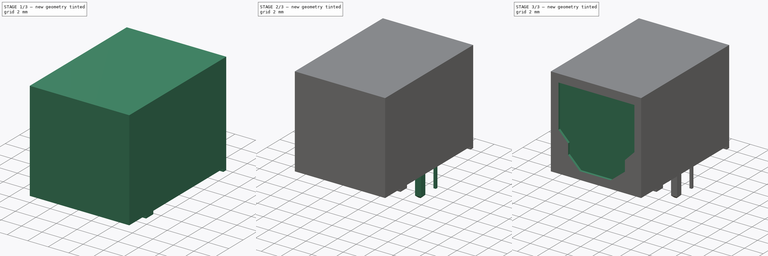
[diagram: build sequence overview — one tinted view per stage of 3, left to right]
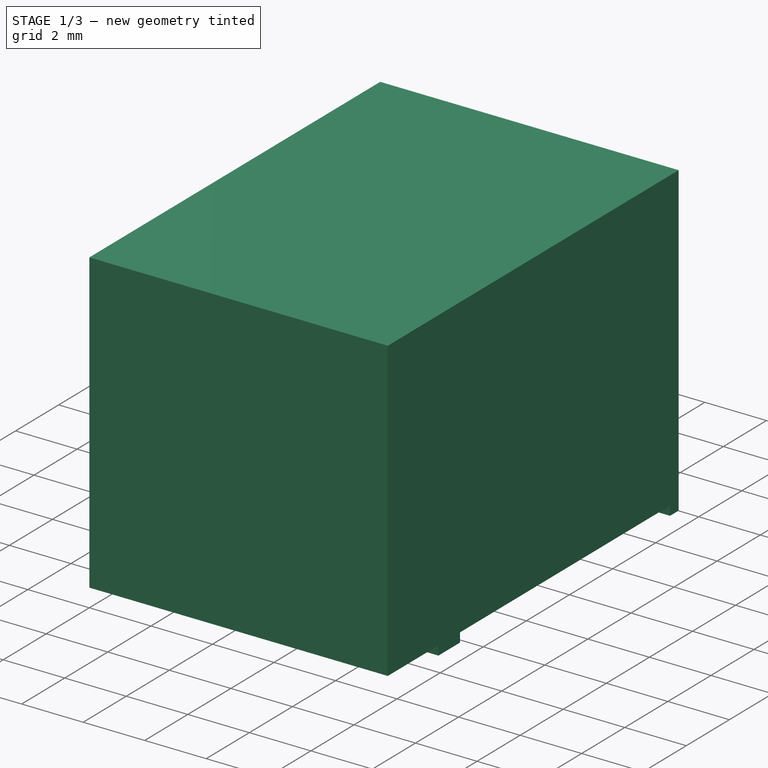
[diagram: stage 1 of 3 — iso view after this stage's code; geometry added in this stage tinted green]
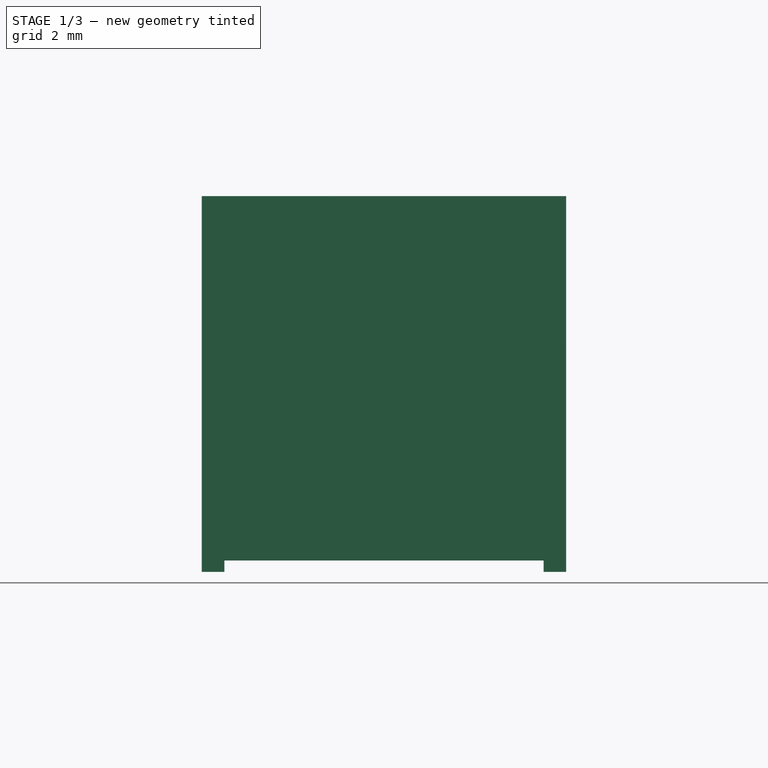
[diagram: stage 1 of 3 — front view after this stage's code; geometry added in this stage tinted green]
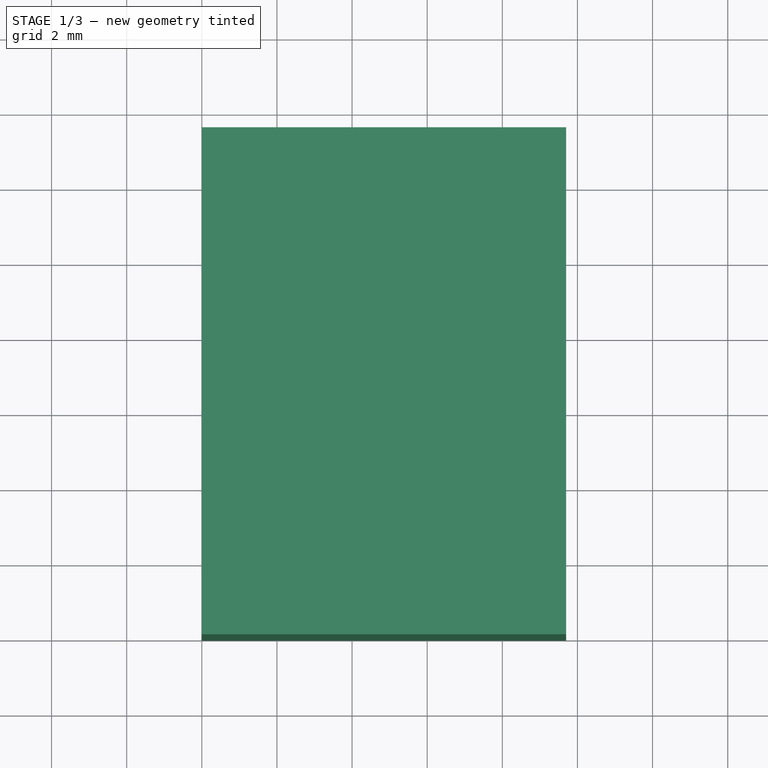
[diagram: stage 1 of 3 — top view after this stage's code; geometry added in this stage tinted green]
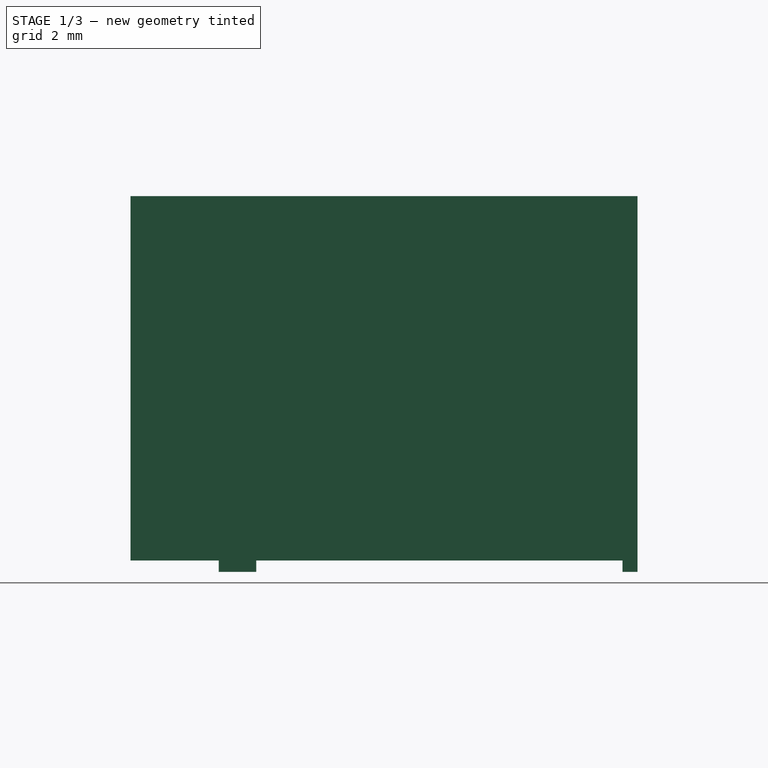
[diagram: stage 1 of 3 — right view after this stage's code; geometry added in this stage tinted green]
FCSTD DOCUMENT  (FreeCAD 1.0R39319 (Git))
Label: PLx237
License: All rights reserved
LicenseURL: https://en.wikipedia.org/wiki/All_rights_reserved
objects: Sketcher::SketchObject×7, PartDesign::Pad×4, PartDesign::Pocket×2, PartDesign::Plane×2, PartDesign::Chamfer×1, PartDesign::Body×1, Part::Feature×1
note: 39 computed .brp shape members not serialized (recipe doc carries the construction recipe); baked Part::Feature solids carry a one-line shape summary decoded from their .brp

FEATURE [Sketcher::SketchObject] Sketch
  ArcFitTolerance = 1e-06
  AttachmentSupport = -> [YZ_Plane]
  FullyConstrained = false
  MakeInternals = false
  MapMode = 5
  Placement = pos=(0,0,0) rot=(0.57735,0.57735,0.57735;2.0944rad)
  sketch-geometry (16):
    g0: LineSegment StartX=0 StartY=0 StartZ=0 EndX=0 EndY=-9.7 EndZ=0
    g1: LineSegment StartX=0 StartY=-9.7 StartZ=0 EndX=2.35 EndY=-9.7 EndZ=0
    g2: LineSegment StartX=13.5 StartY=-9.7 StartZ=0 EndX=13.5 EndY=0 EndZ=0
    g3: LineSegment StartX=13.5 StartY=0 StartZ=0 EndX=0 EndY=0 EndZ=0
    g4: GeomPoint X=2.35 Y=-9.7 Z=0
    g5: LineSegment [constr] StartX=0 StartY=-10 StartZ=0 EndX=13.5 EndY=-10 EndZ=0
    g6: GeomPoint X=2.35 Y=-10 Z=0
    g7: LineSegment StartX=2.35 StartY=-9.7 StartZ=0 EndX=2.35 EndY=-10 EndZ=0
    g8: GeomPoint X=3.35 Y=-10 Z=0
    g9: LineSegment StartX=2.35 StartY=-10 StartZ=0 EndX=3.35 EndY=-10 EndZ=0
    g10: LineSegment StartX=3.35 StartY=-10 StartZ=0 EndX=3.35 EndY=-9.7 EndZ=0
    g11: LineSegment StartX=3.35 StartY=-9.7 StartZ=0 EndX=13.1 EndY=-9.7 EndZ=0
    g12: GeomPoint X=13.1 Y=-9.7 Z=0
    g13: LineSegment StartX=13.1 StartY=-9.7 StartZ=0 EndX=13.1 EndY=-10 EndZ=0
    g14: LineSegment StartX=13.1 StartY=-10 StartZ=0 EndX=13.5 EndY=-10 EndZ=0
    g15: LineSegment StartX=13.5 StartY=-10 StartZ=0 EndX=13.5 EndY=-9.7 EndZ=0
  constraints (40):
    c: Coincident(g0,g1)
    c: Coincident(g2,g3)
    c: Coincident(g3,g0)
    c: Vertical(g0)
    c: Vertical(g2)
    c: Horizontal(g1)
    c: Horizontal(g3)
    c: DistanceX(g3,g3) = 13.5
    c: DistanceY(g0,g0) = 9.7
    c: Coincident(g0,g-1)
    c: PointOnObject(g4,g1)
    c: DistanceX(g0,g4) = 2.35
    c: PointOnObject(g5,g-2)
    c: Horizontal(g5)
    c: PointOnObject(g6,g5)
    c: DistanceY(g5,g0) = 10
    c: Coincident(g7,g4)
    c: Coincident(g7,g6)
    c: Vertical(g7)
    c: PointOnObject(g8,g5)
    c: DistanceX(g6,g8) = 1
    c: Coincident(g9,g6)
    c: Coincident(g9,g8)
    c: Coincident(g10,g8)
    c: PointOnObject(g10,g11)
    c: Vertical(g10)
    c: PointOnObject(g1,g7)
    c: PointOnObject(g11,g10)
    c: Horizontal(g1,g10)
    c: Horizontal(g2,g10)
    c: PointOnObject(g12,g11)
    c: DistanceX(g12,g2) = 0.4
    c: Coincident(g13,g12)
    c: PointOnObject(g13,g5)
    c: Vertical(g13)
    c: Coincident(g14,g13)
    c: Coincident(g14,g5)
    c: Coincident(g15,g5)
    c: Coincident(g15,g2)
    c: PointOnObject(g11,g13)
FEATURE [PartDesign::Pad] Pad
  Direction = (1,0,0)
  Length = 9.7
  Length2 = 10
  Placement = pos=(0,0,0) rot=(1,1,1;2.0944rad)
  Profile = -> Sketch
  ReferenceAxis = -> Sketch [N_Axis]
  Refine = true
  Suppressed = false
  Type = 0
FEATURE [Sketcher::SketchObject] Sketch001
  ArcFitTolerance = 1e-06
  AttachmentSupport = -> [Pad]
  ExternalGeometry = -> [Pad]
  FullyConstrained = true
  MakeInternals = false
  MapMode = 5
  Placement = pos=(0,0,0) rot=(0.57735,0.57735,-0.57735;2.0944rad)
  sketch-geometry (6):
    g0: LineSegment StartX=9.7 StartY=9.1 StartZ=0 EndX=9.7 EndY=0.6 EndZ=0
    g1: LineSegment StartX=9.7 StartY=0.6 StartZ=0 EndX=10 EndY=0.6 EndZ=0
    g2: LineSegment StartX=10 StartY=0.6 StartZ=0 EndX=10 EndY=9.1 EndZ=0
    g3: LineSegment StartX=10 StartY=9.1 StartZ=0 EndX=9.7 EndY=9.1 EndZ=0
    g4: GeomPoint [constr] X=9.7 Y=4.85 Z=0
    g5: GeomPoint [constr] X=9.7 Y=4.85 Z=0
  constraints (13):
    c: Coincident(g0,g1)
    c: Coincident(g1,g2)
    c: Coincident(g2,g3)
    c: Coincident(g3,g0)
    c: Vertical(g0)
    c: Vertical(g2)
    c: Horizontal(g1)
    c: Horizontal(g3)
    c: PointOnObject(g1,g-6)
    c: DistanceY(g0,g0) = 8.5
    c: Symmetric(g0,g0,g4)
    c: Symmetric(g-3,g-3,g5)
    c: Coincident(g4,g5)
FEATURE [PartDesign::Pocket] Pocket
  BaseFeature = -> Pad
  Direction = (0,1,0)
  Length = 14
  Length2 = 5
  Placement = pos=(0,0,0) rot=(1,1,1;2.0944rad)
  Profile = -> Sketch001
  ReferenceAxis = -> Sketch001 [N_Axis]
  Refine = true
  Suppressed = false
  Type = 0
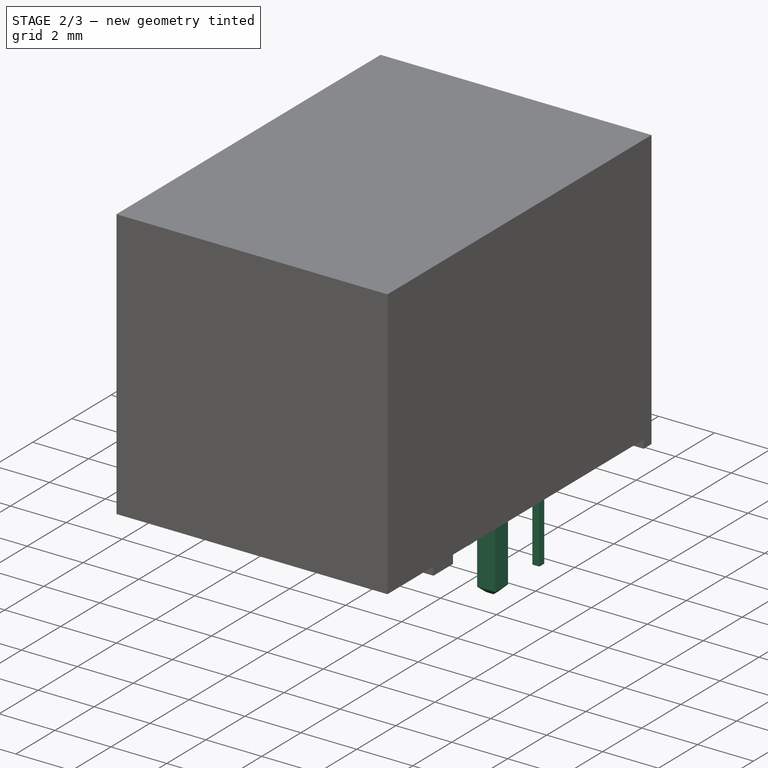
[diagram: stage 2 of 3 — iso view after this stage's code; geometry added in this stage tinted green]
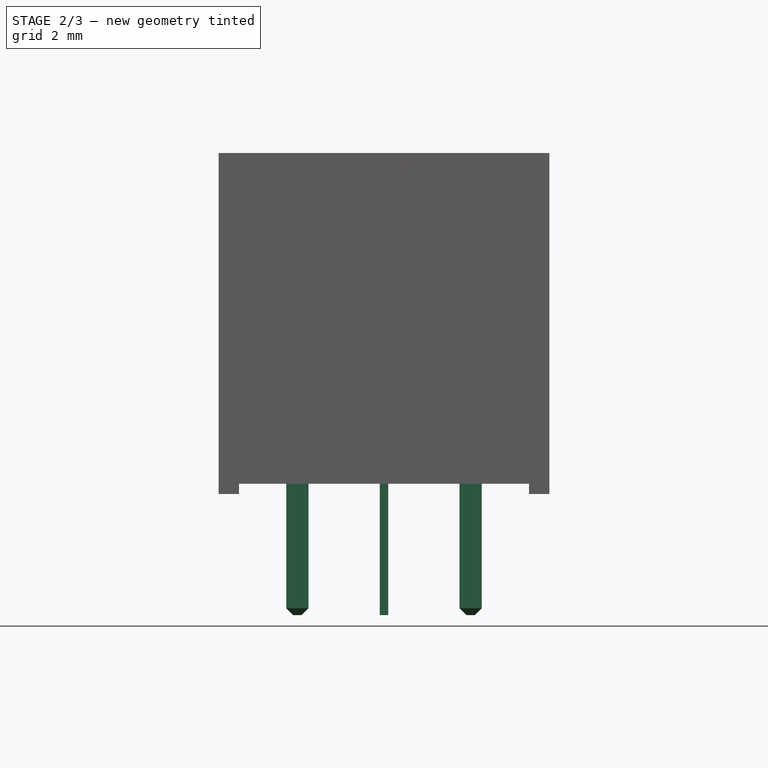
[diagram: stage 2 of 3 — front view after this stage's code; geometry added in this stage tinted green]
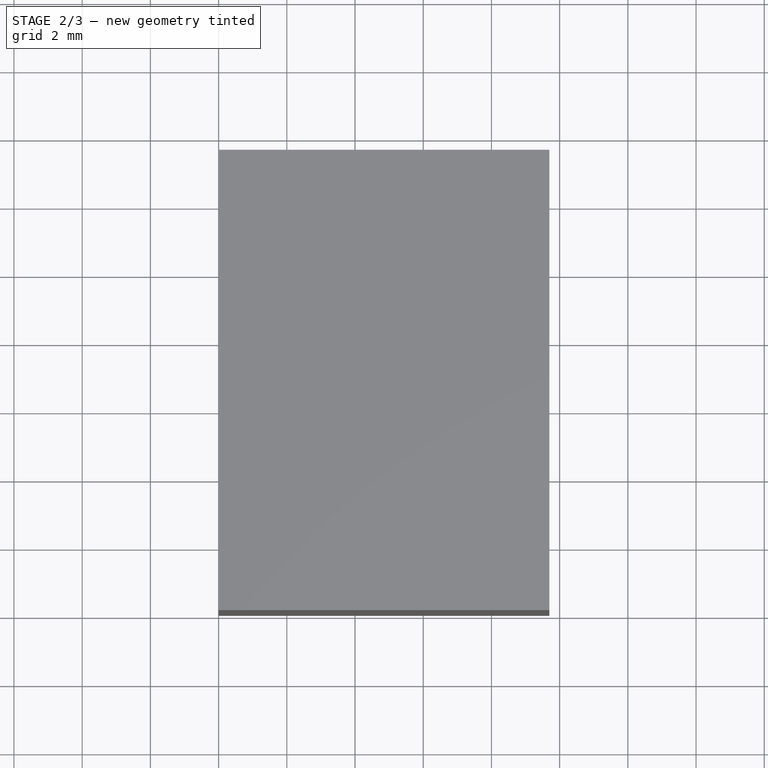
[diagram: stage 2 of 3 — top view after this stage's code; geometry added in this stage tinted green]
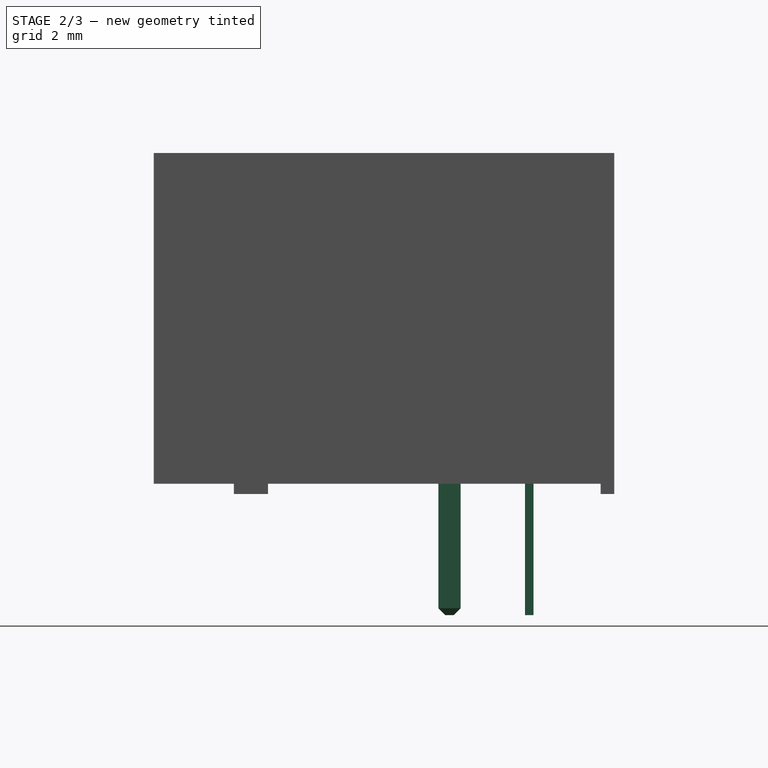
[diagram: stage 2 of 3 — right view after this stage's code; geometry added in this stage tinted green]
FEATURE [Sketcher::SketchObject] Sketch002
  ArcFitTolerance = 1e-06
  AttachmentSupport = -> [Pocket]
  ExternalGeometry = -> [Pocket]
  FullyConstrained = true
  MakeInternals = false
  MapMode = 5
  Placement = pos=(9.7,-4.3e-15,2.2e-15) rot=(0.57735,0.57735,0.57735;2.0944rad)
  sketch-geometry (2):
    g0: GeomPoint X=8.67 Y=-5.8e-15 Z=0
    g1: GeomPoint X=11.01 Y=-7.3e-15 Z=0
  constraints (4):
    c: PointOnObject(g0,g-3)
    c: DistanceX(g-1,g0) = 8.67
    c: PointOnObject(g1,g-3)
    c: DistanceX(g-1,g1) = 11.01
FEATURE [PartDesign::Plane] DatumPlane
  AttachmentOffset = pos=(0,0,5) rot=(0,0,1;0rad)
  AttachmentSupport = -> [Sketch002]
  Length = 60
  MapMode = 1
  Placement = pos=(9.7,8.67,5) rot=(0.57735,0.57735,-0.57735;2.0944rad)
  ResizeMode = 0
  Width = 60
FEATURE [PartDesign::Plane] DatumPlane001
  AttachmentSupport = -> [Sketch002]
  Length = 60
  MapMode = 1
  Placement = pos=(9.7,11.01,-5.1e-15) rot=(0.57735,0.57735,-0.57735;2.0944rad)
  ResizeMode = 0
  Width = 60
FEATURE [Sketcher::SketchObject] Sketch003
  ArcFitTolerance = 1e-06
  AttachmentSupport = -> [DatumPlane]
  ExternalGeometry = -> [Pocket]
  FullyConstrained = true
  MakeInternals = false
  MapMode = 5
  Placement = pos=(9.7,8.67,5) rot=(0.57735,0.57735,-0.57735;2.0944rad)
  sketch-geometry (20):
    g0: LineSegment [constr] StartX=18.55 StartY=-9.7 StartZ=0 EndX=18.55 EndY=0 EndZ=0
    g1: LineSegment [constr] StartX=14.7 StartY=-9.7 StartZ=0 EndX=18.55 EndY=-9.7 EndZ=0
    g2: LineSegment [constr] StartX=14.7 StartY=-4.525 StartZ=0 EndX=14.7 EndY=-5.175 EndZ=0
    g3: LineSegment [constr] StartX=14.7 StartY=-5.175 StartZ=0 EndX=18.55 EndY=-5.175 EndZ=0
    g4: LineSegment [constr] StartX=18.55 StartY=-5.175 StartZ=0 EndX=18.55 EndY=-4.525 EndZ=0
    g5: LineSegment [constr] StartX=18.55 StartY=-4.525 StartZ=0 EndX=14.7 EndY=-4.525 EndZ=0
    g6: GeomPoint [constr] X=14.7 Y=-4.85 Z=0
    g7: GeomPoint [constr] X=18.55 Y=-4.85 Z=0
    g8: LineSegment StartX=14.7 StartY=-1.985 StartZ=0 EndX=14.7 EndY=-2.635 EndZ=0
    g9: LineSegment StartX=14.7 StartY=-2.635 StartZ=0 EndX=18.55 EndY=-2.635 EndZ=0
    g10: LineSegment StartX=18.55 StartY=-2.635 StartZ=0 EndX=18.55 EndY=-1.985 EndZ=0
    g11: LineSegment StartX=18.55 StartY=-1.985 StartZ=0 EndX=14.7 EndY=-1.985 EndZ=0
    g12: LineSegment StartX=14.7 StartY=-7.065 StartZ=0 EndX=14.7 EndY=-7.715 EndZ=0
    g13: LineSegment StartX=14.7 StartY=-7.715 StartZ=0 EndX=18.55 EndY=-7.715 EndZ=0
    g14: LineSegment StartX=18.55 StartY=-7.715 StartZ=0 EndX=18.55 EndY=-7.065 EndZ=0
    g15: LineSegment StartX=18.55 StartY=-7.065 StartZ=0 EndX=14.7 EndY=-7.065 EndZ=0
    g16: GeomPoint [constr] X=18.55 Y=-2.31 Z=0
    g17: GeomPoint [constr] X=18.55 Y=-7.39 Z=0
    g18: LineSegment [constr] StartX=18.55 StartY=-2.31 StartZ=0 EndX=18.55 EndY=-4.85 EndZ=0
    g19: LineSegment [constr] StartX=18.55 StartY=-7.39 StartZ=0 EndX=18.55 EndY=-4.85 EndZ=0
  constraints (50):
    c: PointOnObject(g0,g-1)
    c: Vertical(g0)
    c: Coincident(g1,g-3)
    c: Horizontal(g1)
    c: Coincident(g1,g0)
    c: DistanceX(g1,g1) = 3.85
    c: Coincident(g2,g3)
    c: Coincident(g3,g4)
    c: Coincident(g4,g5)
    c: Coincident(g5,g2)
    c: Vertical(g2)
    c: Vertical(g4)
    c: Horizontal(g3)
    c: Horizontal(g5)
    c: PointOnObject(g2,g-3)
    c: PointOnObject(g3,g0)
    c: DistanceY(g4,g4) = 0.65
    c: Symmetric(g-3,g-3,g6)
    c: Symmetric(g4,g4,g7)
    c: Horizontal(g7,g6)
    c: Coincident(g8,g9)
    c: Coincident(g9,g10)
    c: Coincident(g10,g11)
    c: Coincident(g11,g8)
    c: Vertical(g8)
    c: Vertical(g10)
    c: Horizontal(g9)
    c: Horizontal(g11)
    c: PointOnObject(g8,g-3)
    c: PointOnObject(g9,g0)
    c: DistanceY(g10,g10) = 0.65
    c: Coincident(g12,g13)
    c: Coincident(g13,g14)
    c: Coincident(g14,g15)
    c: Coincident(g15,g12)
    c: Vertical(g12)
    c: Vertical(g14)
    c: Horizontal(g13)
    c: Horizontal(g15)
    c: PointOnObject(g12,g-3)
    c: PointOnObject(g13,g0)
    c: DistanceY(g14,g14) = 0.65
    c: Symmetric(g10,g10,g16)
    c: Symmetric(g14,g14,g17)
    c: DistanceY(g7,g16) = 2.54
    c: Coincident(g18,g16)
    c: Coincident(g18,g7)
    c: Coincident(g19,g17)
    c: Coincident(g19,g7)
    c: Equal(g18,g19)
FEATURE [PartDesign::Pad] Pad001
  BaseFeature = -> Pocket
  Direction = (0,-1,0)
  Length = 0.65
  Length2 = 10
  Midplane = true
  Placement = pos=(0,0,0) rot=(1,1,1;2.0944rad)
  Profile = -> Sketch003
  ReferenceAxis = -> Sketch003 [N_Axis]
  Refine = true
  Suppressed = false
  Type = 0
FEATURE [Sketcher::SketchObject] Sketch004
  ArcFitTolerance = 1e-06
  AttachmentSupport = -> [DatumPlane001]
  ExternalGeometry = -> [Pad001]
  FullyConstrained = true
  MakeInternals = false
  MapMode = 5
  Placement = pos=(9.7,11.01,-5.1e-15) rot=(0.57735,0.57735,-0.57735;2.0944rad)
  sketch-geometry (18):
    g0: LineSegment [constr] StartX=13.55 StartY=0 StartZ=0 EndX=13.55 EndY=-9.7 EndZ=0
    g1: LineSegment [constr] StartX=9.7 StartY=-9.7 StartZ=0 EndX=13.55 EndY=-9.7 EndZ=0
    g2: LineSegment StartX=9.7 StartY=-4.725 StartZ=0 EndX=9.7 EndY=-4.975 EndZ=0
    g3: LineSegment StartX=9.7 StartY=-4.975 StartZ=0 EndX=13.55 EndY=-4.975 EndZ=0
    g4: LineSegment StartX=13.55 StartY=-4.975 StartZ=0 EndX=13.55 EndY=-4.725 EndZ=0
    g5: LineSegment StartX=13.55 StartY=-4.725 StartZ=0 EndX=9.7 EndY=-4.725 EndZ=0
    g6: GeomPoint X=13.55 Y=-4.85 Z=0
    g7: GeomPoint X=13.55 Y=-4.85 Z=0
    g8: LineSegment StartX=9.7 StartY=-2.185 StartZ=0 EndX=9.7 EndY=-2.435 EndZ=0
    g9: LineSegment StartX=9.7 StartY=-2.435 StartZ=0 EndX=13.55 EndY=-2.435 EndZ=0
    g10: LineSegment StartX=13.55 StartY=-2.435 StartZ=0 EndX=13.55 EndY=-2.185 EndZ=0
    g11: LineSegment StartX=13.55 StartY=-2.185 StartZ=0 EndX=9.7 EndY=-2.185 EndZ=0
    g12: GeomPoint X=13.55 Y=-2.31 Z=0
    g13: LineSegment StartX=9.7 StartY=-7.265 StartZ=0 EndX=9.7 EndY=-7.515 EndZ=0
    g14: LineSegment StartX=9.7 StartY=-7.515 StartZ=0 EndX=13.55 EndY=-7.515 EndZ=0
    g15: LineSegment StartX=13.55 StartY=-7.515 StartZ=0 EndX=13.55 EndY=-7.265 EndZ=0
    g16: LineSegment StartX=13.55 StartY=-7.265 StartZ=0 EndX=9.7 EndY=-7.265 EndZ=0
    g17: GeomPoint X=13.55 Y=-7.39 Z=0
  constraints (45):
    c: PointOnObject(g0,g-1)
    c: Vertical(g0)
    c: Coincident(g1,g-3)
    c: Horizontal(g1)
    c: Coincident(g0,g1)
    c: DistanceX(g1,g1) = 3.85
    c: Coincident(g2,g3)
    c: Coincident(g3,g4)
    c: Coincident(g4,g5)
    c: Coincident(g5,g2)
    c: Vertical(g2)
    c: Vertical(g4)
    c: Horizontal(g3)
    c: Horizontal(g5)
    c: PointOnObject(g2,g-3)
    c: DistanceY(g4,g4) = 0.25
    c: Symmetric(g4,g4,g6)
    c: Symmetric(g0,g0,g7)
    c: Coincident(g6,g7)
    c: Coincident(g8,g9)
    c: Coincident(g9,g10)
    c: Coincident(g10,g11)
    c: Coincident(g11,g8)
    c: Vertical(g8)
    c: Vertical(g10)
    c: Horizontal(g9)
    c: Horizontal(g11)
    c: PointOnObject(g8,g-3)
    c: PointOnObject(g9,g0)
    c: Symmetric(g10,g10,g12)
    c: DistanceY(g6,g12) = 2.54
    c: Equal(g4,g10)
    c: Coincident(g13,g14)
    c: Coincident(g14,g15)
    c: Coincident(g15,g16)
    c: Coincident(g16,g13)
    c: Vertical(g13)
    c: Vertical(g15)
    c: Horizontal(g14)
    c: Horizontal(g16)
    c: PointOnObject(g13,g-3)
    c: PointOnObject(g14,g0)
    c: Symmetric(g15,g15,g17)
    c: DistanceY(g17,g6) = 2.54
    c: Equal(g4,g15)
FEATURE [PartDesign::Pad] Pad002
  BaseFeature = -> Pad001
  Direction = (0,-1,0)
  Length = 0.25
  Length2 = 10
  Midplane = true
  Placement = pos=(0,0,0) rot=(1,1,1;2.0944rad)
  Profile = -> Sketch004
  ReferenceAxis = -> Sketch004 [N_Axis]
  Refine = true
  Suppressed = false
  Type = 0
FEATURE [PartDesign::Chamfer] Chamfer
  Angle = 45
  Base = -> Pad002 [Edge114,Edge113,Edge107,Edge111,Edge87,Edge90,Edge89,Edge83]
  BaseFeature = -> Pad002
  ChamferType = 0
  FlipDirection = false
  Placement = pos=(0,0,0) rot=(1,1,1;2.0944rad)
  Refine = true
  Size = 0.2
  Size2 = 1
  SupportTransform = false
  Suppressed = false
  UseAllEdges = false
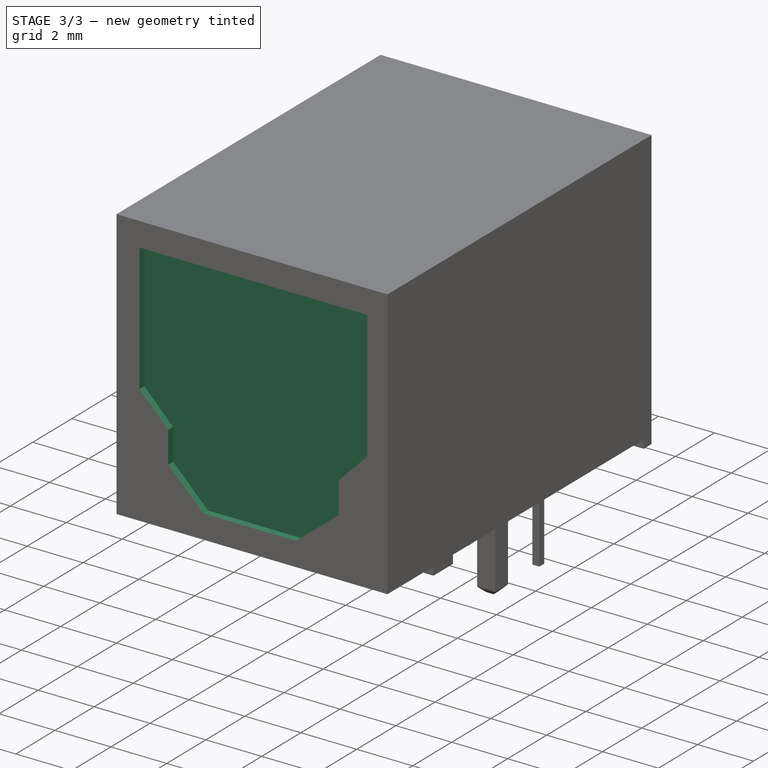
[diagram: stage 3 of 3 — iso view after this stage's code; geometry added in this stage tinted green]
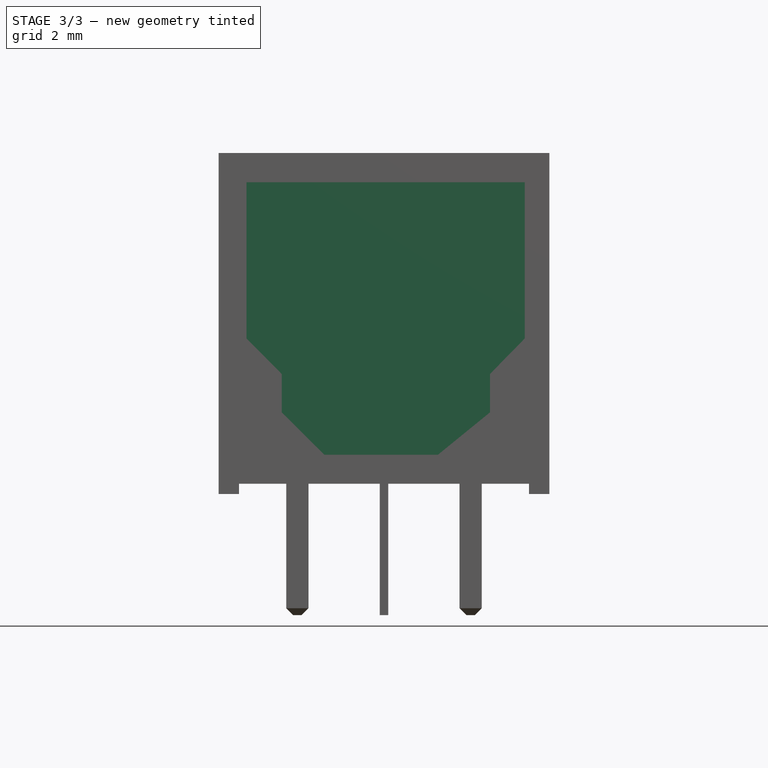
[diagram: stage 3 of 3 — front view after this stage's code; geometry added in this stage tinted green]
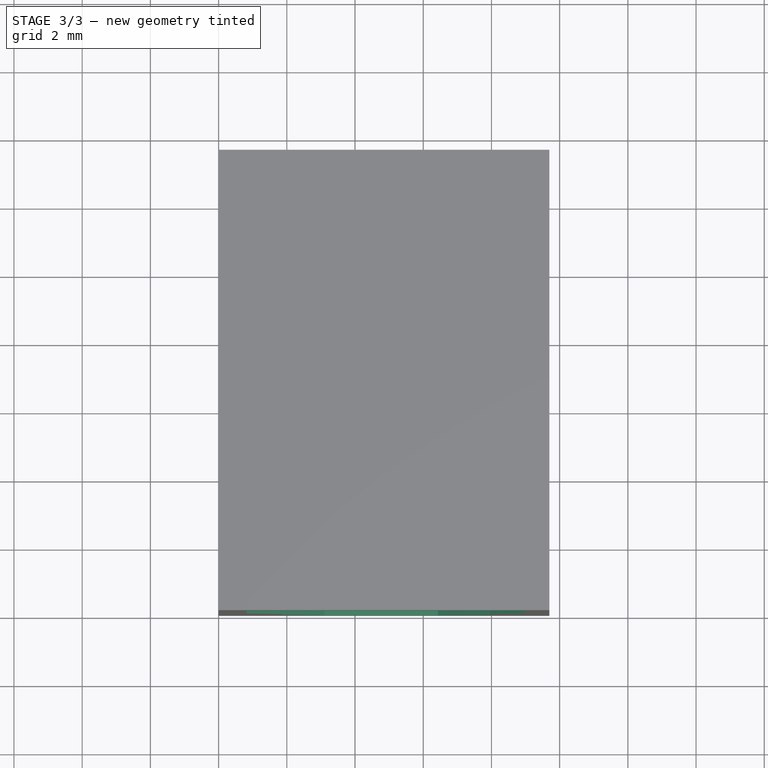
[diagram: stage 3 of 3 — top view after this stage's code; geometry added in this stage tinted green]
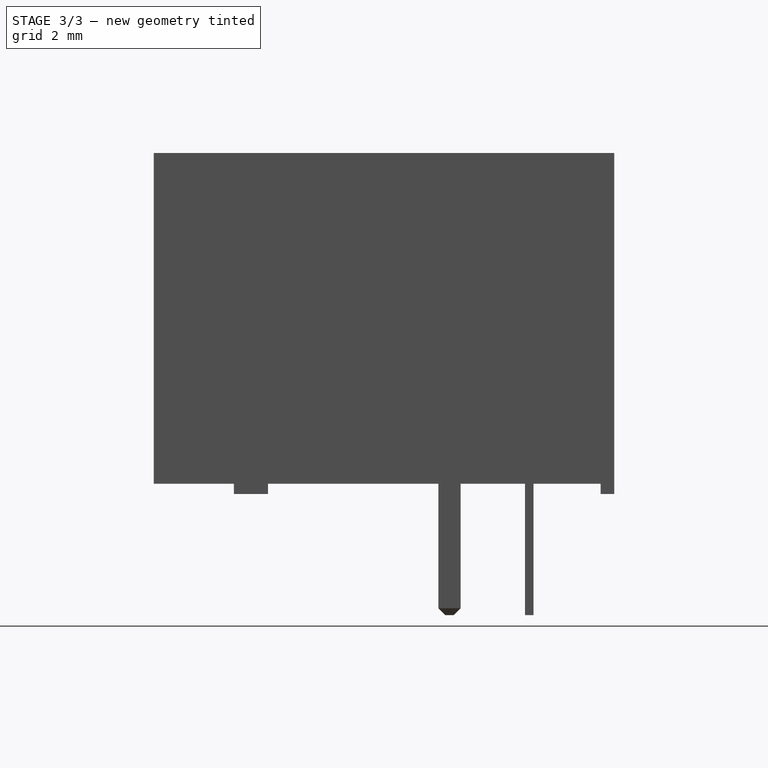
[diagram: stage 3 of 3 — right view after this stage's code; geometry added in this stage tinted green]
FEATURE [Sketcher::SketchObject] Sketch005
  ArcFitTolerance = 1e-06
  AttachmentSupport = -> [Chamfer]
  FullyConstrained = false
  MakeInternals = false
  MapMode = 5
  Placement = pos=(0,0,0) rot=(0.57735,0.57735,-0.57735;2.0944rad)
  sketch-geometry (15):
    g0: LineSegment StartX=0.857823 StartY=8.97684 StartZ=0 EndX=0.857823 EndY=0.818407 EndZ=0
    g1: LineSegment StartX=0.857823 StartY=0.818407 StartZ=0 EndX=5.43972 EndY=0.818407 EndZ=0
    g2: LineSegment StartX=5.43972 StartY=0.818407 StartZ=0 EndX=6.4818 EndY=1.85158 EndZ=0
    g3: LineSegment StartX=6.4818 StartY=1.85158 StartZ=0 EndX=7.60732 EndY=1.85158 EndZ=0
    g4: LineSegment StartX=7.60732 StartY=1.85158 StartZ=0 EndX=8.85105 EndY=3.10525 EndZ=0
    g5: LineSegment [constr] StartX=5.43972 StartY=0.818407 StartZ=0 EndX=5.43972 EndY=9.59212 EndZ=0
    g6: LineSegment StartX=0.857823 StartY=8.97684 StartZ=0 EndX=5.43972 EndY=8.97684 EndZ=0
    g7: LineSegment [constr] StartX=6.4818 StartY=1.85158 StartZ=0 EndX=6.4818 EndY=9.66716 EndZ=0
    g8: LineSegment [constr] StartX=7.60732 StartY=1.85158 StartZ=0 EndX=7.60732 EndY=9.68217 EndZ=0
    g9: GeomPoint X=5.43972 Y=8.97684 Z=0
    g10: LineSegment StartX=5.43972 StartY=8.97684 StartZ=0 EndX=6.4818 EndY=7.95636 EndZ=0
    g11: LineSegment StartX=6.4818 StartY=7.95636 StartZ=0 EndX=7.60732 EndY=7.95636 EndZ=0
    g12: LineSegment [constr] StartX=8.85105 StartY=3.10525 StartZ=0 EndX=8.85105 EndY=9.75299 EndZ=0
    g13: LineSegment StartX=7.60732 StartY=7.95636 StartZ=0 EndX=8.85105 EndY=6.42912 EndZ=0
    g14: LineSegment StartX=8.85105 StartY=6.42912 StartZ=0 EndX=8.85105 EndY=3.10525 EndZ=0
  constraints (28):
    c: Vertical(g0)
    c: Coincident(g1,g0)
    c: Horizontal(g1)
    c: Coincident(g2,g1)
    c: Coincident(g3,g2)
    c: Horizontal(g3)
    c: Coincident(g4,g3)
    c: Coincident(g5,g1)
    c: Vertical(g5)
    c: Coincident(g6,g0)
    c: PointOnObject(g6,g5)
    c: Horizontal(g6)
    c: Coincident(g7,g2)
    c: Vertical(g7)
    c: Coincident(g8,g3)
    c: Vertical(g8)
    c: Coincident(g9,g6)
    c: Coincident(g10,g6)
    c: PointOnObject(g10,g7)
    c: Coincident(g11,g10)
    c: PointOnObject(g11,g8)
    c: Horizontal(g11)
    c: Coincident(g12,g4)
    c: Vertical(g12)
    c: Coincident(g13,g11)
    c: Symmetric(g12,g12,g13)
    c: Coincident(g14,g13)
    c: Coincident(g14,g4)
FEATURE [PartDesign::Pocket] Pocket001
  BaseFeature = -> Chamfer
  Direction = (1e-16,1,-1e-15)
  Length = 10
  Length2 = 5
  Placement = pos=(0,0,0) rot=(1,1,1;2.0944rad)
  Profile = -> Sketch005
  ReferenceAxis = -> Sketch005 [N_Axis]
  Refine = true
  Suppressed = false
  Type = 0
FEATURE [Sketcher::SketchObject] Sketch006
  ArcFitTolerance = 1e-06
  AttachmentOffset = pos=(0,0,-0.25) rot=(0,0,1;0rad)
  AttachmentSupport = -> [XZ_Plane]
  ExternalGeometry = -> [Pocket001]
  FullyConstrained = true
  MakeInternals = false
  MapMode = 5
  Placement = pos=(0,0.25,-1e-16) rot=(1,0,0;1.5708rad)
  sketch-geometry (10):
    g0: LineSegment StartX=0.818407 StartY=-0.857823 StartZ=0 EndX=8.97684 EndY=-0.857823 EndZ=0
    g1: LineSegment StartX=8.97684 StartY=-0.857823 StartZ=0 EndX=8.97684 EndY=-5.43972 EndZ=0
    g2: LineSegment StartX=7.95636 StartY=-6.4818 StartZ=0 EndX=8.97684 EndY=-5.43972 EndZ=0
    g3: LineSegment StartX=7.95636 StartY=-7.60732 StartZ=0 EndX=7.95636 EndY=-6.4818 EndZ=0
    g4: LineSegment StartX=7.95636 StartY=-7.60732 StartZ=0 EndX=6.42912 EndY=-8.85105 EndZ=0
    g5: LineSegment StartX=6.42912 StartY=-8.85105 StartZ=0 EndX=3.10525 EndY=-8.85105 EndZ=0
    g6: LineSegment StartX=3.10525 StartY=-8.85105 StartZ=0 EndX=1.85158 EndY=-7.60732 EndZ=0
    g7: LineSegment StartX=1.85158 StartY=-7.60732 StartZ=0 EndX=1.85158 EndY=-6.4818 EndZ=0
    g8: LineSegment StartX=1.85158 StartY=-6.4818 StartZ=0 EndX=0.818407 EndY=-5.43972 EndZ=0
    g9: LineSegment StartX=0.818407 StartY=-5.43972 StartZ=0 EndX=0.818407 EndY=-0.857823 EndZ=0
  constraints (20):
    c: Coincident(g0,g-4)
    c: Coincident(g0,g-12)
    c: Coincident(g1,g0)
    c: Coincident(g1,g-12)
    c: Coincident(g2,g-11)
    c: Coincident(g2,g1)
    c: Coincident(g3,g-10)
    c: Coincident(g3,g-11)
    c: Coincident(g4,g-10)
    c: Coincident(g4,g-9)
    c: Coincident(g5,g4)
    c: Coincident(g5,g-8)
    c: Coincident(g6,g5)
    c: Coincident(g6,g-7)
    c: Coincident(g7,g6)
    c: Coincident(g7,g-6)
    c: Coincident(g8,g7)
    c: Coincident(g8,g-5)
    c: Coincident(g9,g8)
    c: Coincident(g9,g0)
FEATURE [PartDesign::Pad] Pad003
  BaseFeature = -> Pocket001
  Direction = (0,-1,2e-16)
  Length = 1
  Length2 = 10
  Placement = pos=(0,0,0) rot=(1,1,1;2.0944rad)
  Profile = -> Sketch006
  ReferenceAxis = -> Sketch006 [N_Axis]
  Refine = true
  Reversed = true
  Suppressed = false
  Type = 0
FEATURE [PartDesign::Body] Body  label="PLx237"
  AllowCompound = false
  Group = -> [Sketch,Pad,Sketch001,Pocket,Sketch002,DatumPlane,DatumPlane001,Sketch003,Pad001,Sketch004,Pad002,Chamfer,Sketch005,Pocket001,Sketch006,Pad003]
  Origin = -> Origin
  Tip = -> Pad003
FEATURE [Part::Feature] Body001  label="PLx237_Model"
  shape: bbox 9.7 x 13.5 x 13.55 mm, 76 faces (baked)
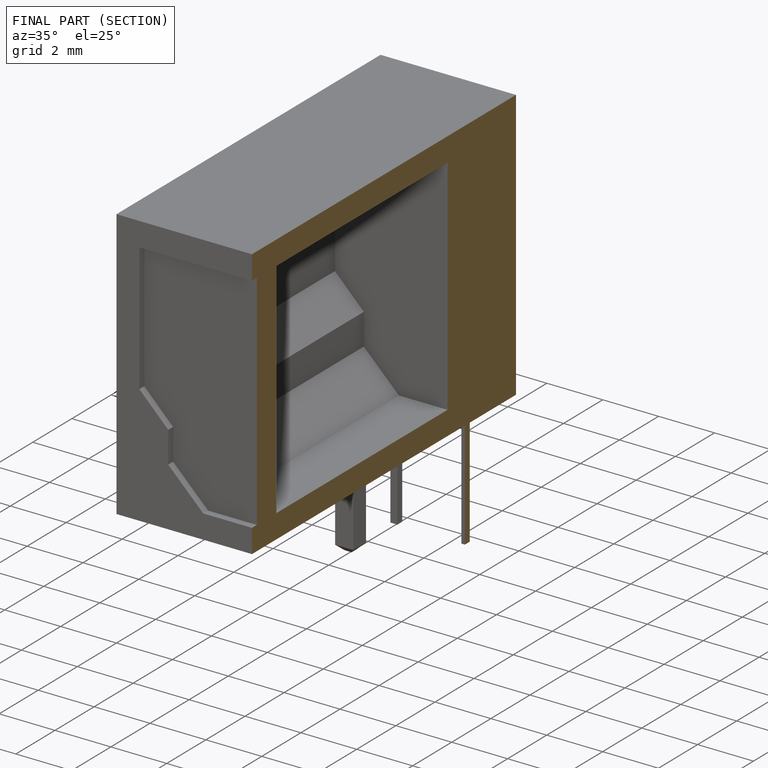
[diagram: finished part — half-section view (interior)]
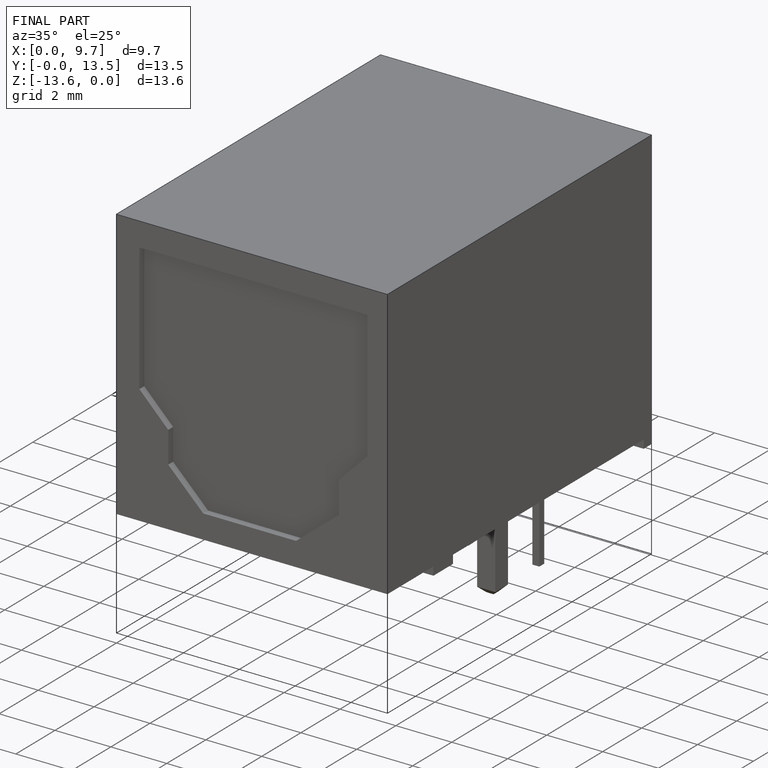
[diagram: finished part — iso view with bounding-box wireframe]
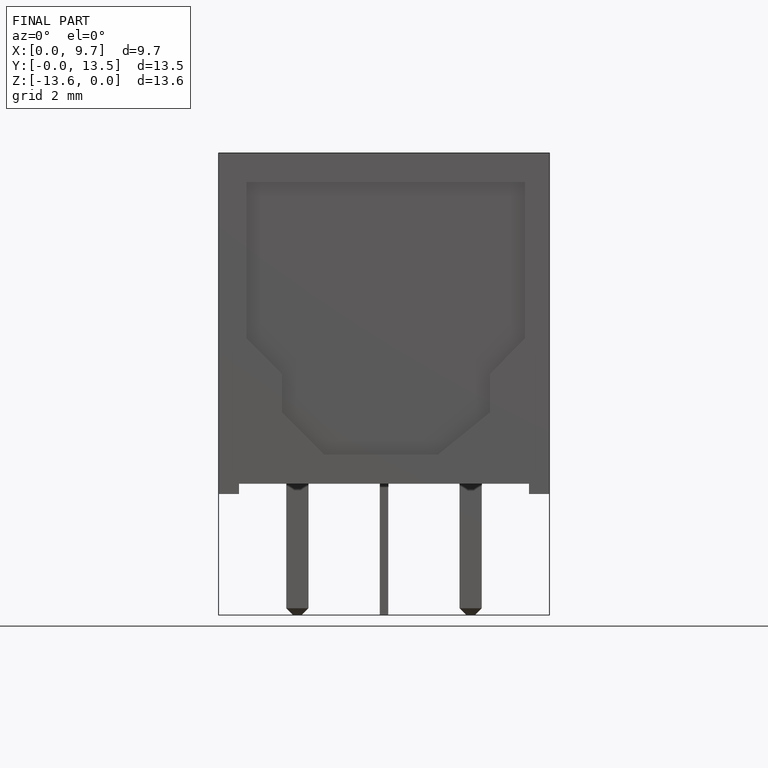
[diagram: finished part — front view with bounding-box wireframe]
